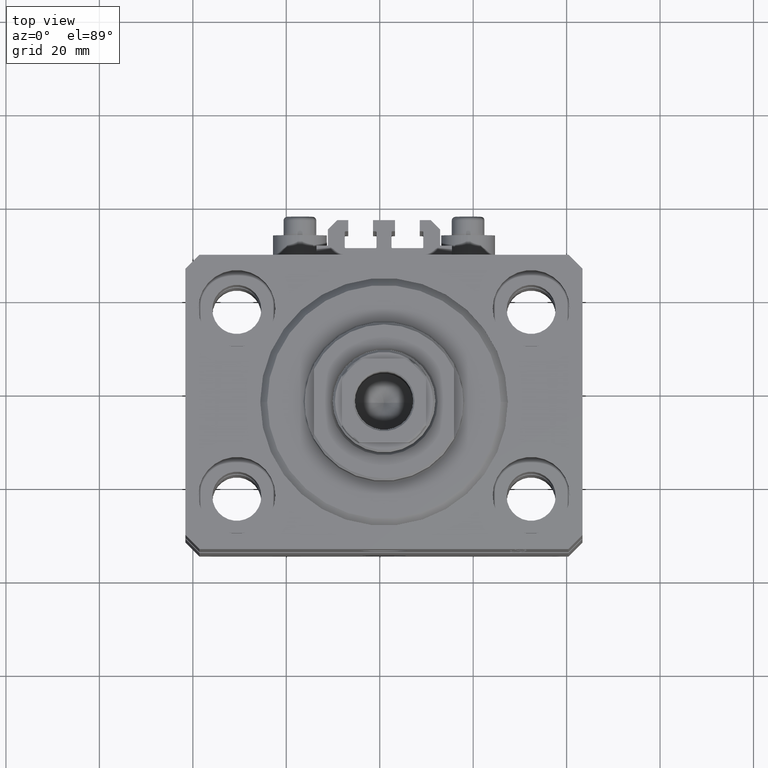
[diagram: clean part render]
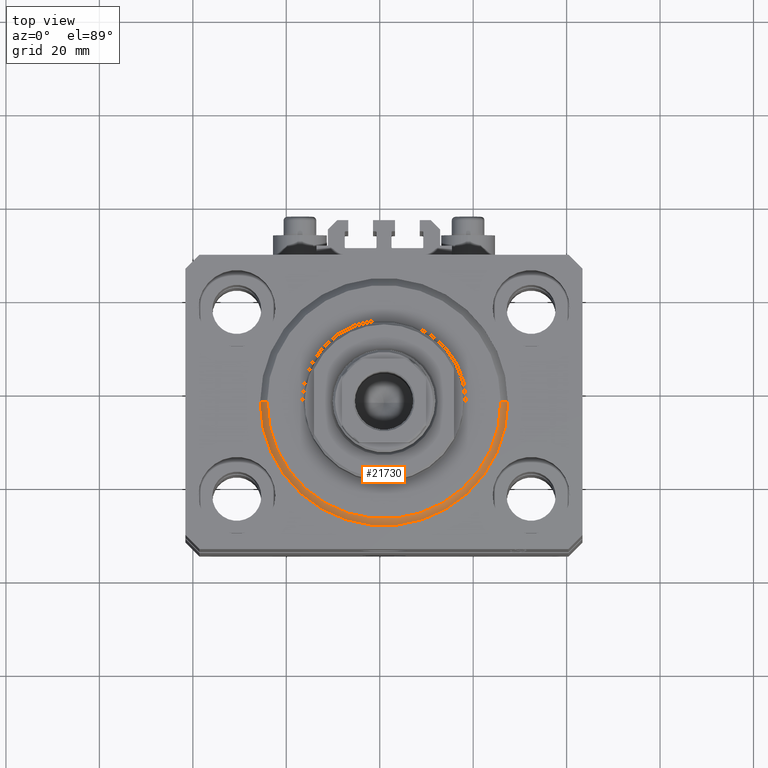
[diagram: same view with one face highlighted and labeled with its STEP entity id]
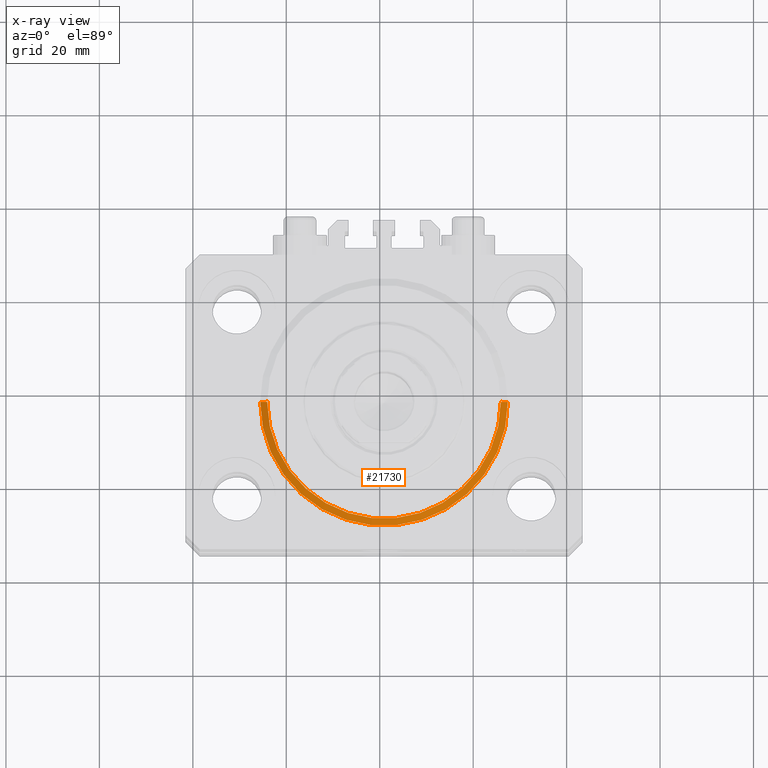
[diagram: x-ray of the same camera — body ghosted, the highlighted face saturated]
A machine part, top view. The second image highlights one B-rep face of the part: STEP entity #21730.
The next image is the same camera in x-ray: the body ghosted, the highlighted face saturated — about 0% of this face is hidden behind the body in this view.
In plain terms, the highlighted conical surface has half-angle 45 deg.
Its self-contained STEP definition (entity closure, byte-faithful):
#1963 = EDGE_CURVE ( 'NONE', #8086, #9403, #45629, .T. ) ;
#2113 = VECTOR ( 'NONE', #5425, 1000.000000000000000 ) ;
#2599 = DIRECTION ( 'NONE',  ( 1.000000000000000000, 0.000000000000000000, 0.000000000000000000 ) ) ;
#3299 = AXIS2_PLACEMENT_3D ( 'NONE', #43497, #35796, #2599 ) ;
#3774 = CIRCLE ( 'NONE', #43732, 26.50000000000000355 ) ;
#5425 = DIRECTION ( 'NONE',  ( 0.7071067811865483499, 0.000000000000000000, 0.7071067811865466846 ) ) ;
#6699 = DIRECTION ( 'NONE',  ( -0.000000000000000000, -0.000000000000000000, 1.000000000000000000 ) ) ;
#7051 = ORIENTED_EDGE ( 'NONE', *, *, #1963, .T. ) ;
#8086 = VERTEX_POINT ( 'NONE', #31147 ) ;
#8494 = AXIS2_PLACEMENT_3D ( 'NONE', #34016, #37377, #40998 ) ;
#9221 = EDGE_CURVE ( 'NONE', #8086, #35948, #18502, .T. ) ;
#9403 = VERTEX_POINT ( 'NONE', #32771 ) ;
#11114 = ORIENTED_EDGE ( 'NONE', *, *, #9221, .F. ) ;
#11469 = LINE ( 'NONE', #11714, #43246 ) ;
#11714 = CARTESIAN_POINT ( 'NONE',  ( -26.50000000000000355, 3.245314017740486554E-15, 1.500000000000018652 ) ) ;
#13716 = EDGE_CURVE ( 'NONE', #32837, #9403, #3774, .T. ) ;
#18502 = CIRCLE ( 'NONE', #8494, 24.99999999999998224 ) ;
#21730 = ADVANCED_FACE ( 'NONE', ( #36029 ), #34779, .T. ) ;
#22759 = EDGE_CURVE ( 'NONE', #35948, #32837, #11469, .T. ) ;
#24759 = DIRECTION ( 'NONE',  ( 1.000000000000000000, 0.000000000000000000, 0.000000000000000000 ) ) ;
#26415 = DIRECTION ( 'NONE',  ( -0.7071067811865483499, 8.659560562354942719E-17, 0.7071067811865466846 ) ) ;
#30294 = CARTESIAN_POINT ( 'NONE',  ( -24.99999999999998224, 3.153465507804433615E-15, 0.000000000000000000 ) ) ;
#31147 = CARTESIAN_POINT ( 'NONE',  ( 24.99999999999998224, 0.000000000000000000, 0.000000000000000000 ) ) ;
#32458 = CARTESIAN_POINT ( 'NONE',  ( 0.000000000000000000, 0.000000000000000000, 1.500000000000018652 ) ) ;
#32771 = CARTESIAN_POINT ( 'NONE',  ( 26.50000000000000355, 3.245314017740486554E-15, 1.500000000000018652 ) ) ;
#32837 = VERTEX_POINT ( 'NONE', #43940 ) ;
#34016 = CARTESIAN_POINT ( 'NONE',  ( 0.000000000000000000, 0.000000000000000000, 0.000000000000000000 ) ) ;
#34662 = ORIENTED_EDGE ( 'NONE', *, *, #13716, .F. ) ;
#34779 = CONICAL_SURFACE ( 'NONE', #3299, 26.50000000000000355, 0.7853981633974495002 ) ;
#35796 = DIRECTION ( 'NONE',  ( -0.000000000000000000, -0.000000000000000000, 1.000000000000000000 ) ) ;
#35948 = VERTEX_POINT ( 'NONE', #30294 ) ;
#36029 = FACE_OUTER_BOUND ( 'NONE', #44060, .T. ) ;
#37377 = DIRECTION ( 'NONE',  ( -0.000000000000000000, -0.000000000000000000, -1.000000000000000000 ) ) ;
#38399 = CARTESIAN_POINT ( 'NONE',  ( 26.50000000000000355, 0.000000000000000000, 1.500000000000018652 ) ) ;
#40998 = DIRECTION ( 'NONE',  ( 1.000000000000000000, 0.000000000000000000, 0.000000000000000000 ) ) ;
#43246 = VECTOR ( 'NONE', #26415, 1000.000000000000000 ) ;
#43497 = CARTESIAN_POINT ( 'NONE',  ( 0.000000000000000000, 0.000000000000000000, 1.500000000000018652 ) ) ;
#43732 = AXIS2_PLACEMENT_3D ( 'NONE', #32458, #6699, #24759 ) ;
#43940 = CARTESIAN_POINT ( 'NONE',  ( -26.50000000000000355, 0.000000000000000000, 1.500000000000018652 ) ) ;
#44060 = EDGE_LOOP ( 'NONE', ( #44222, #11114, #7051, #34662 ) ) ;
#44222 = ORIENTED_EDGE ( 'NONE', *, *, #22759, .F. ) ;
#45629 = LINE ( 'NONE', #38399, #2113 ) ;